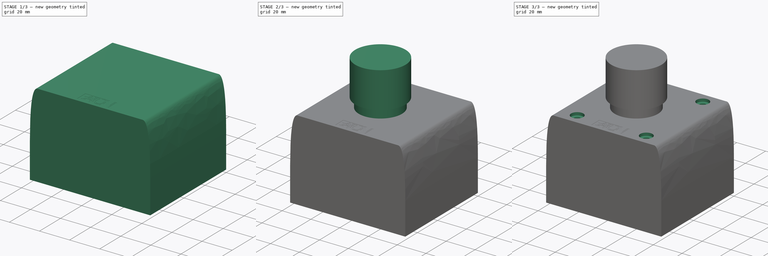
[diagram: build sequence overview — one tinted view per stage of 3, left to right]
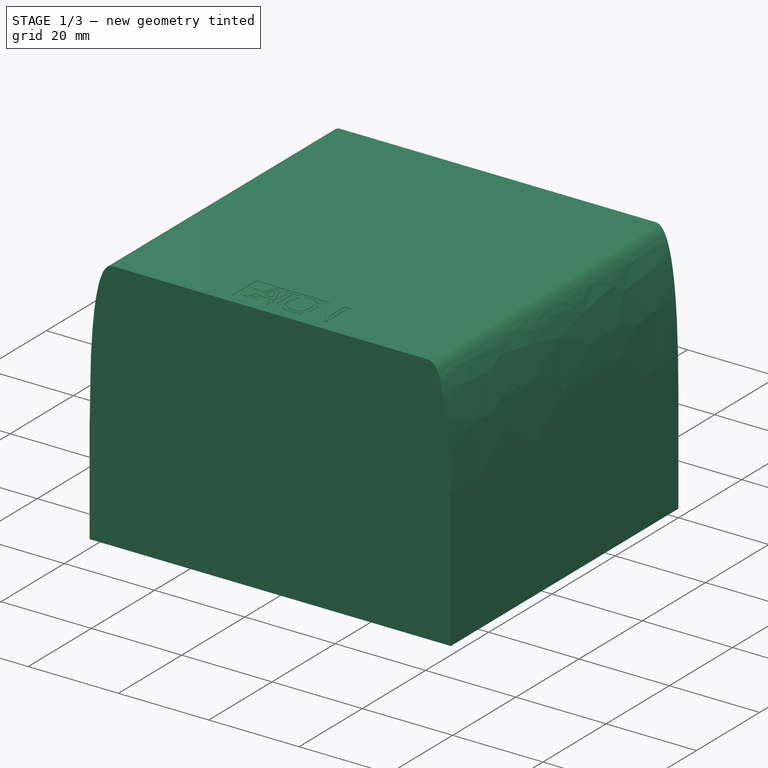
[diagram: stage 1 of 3 — iso view after this stage's code; geometry added in this stage tinted green]
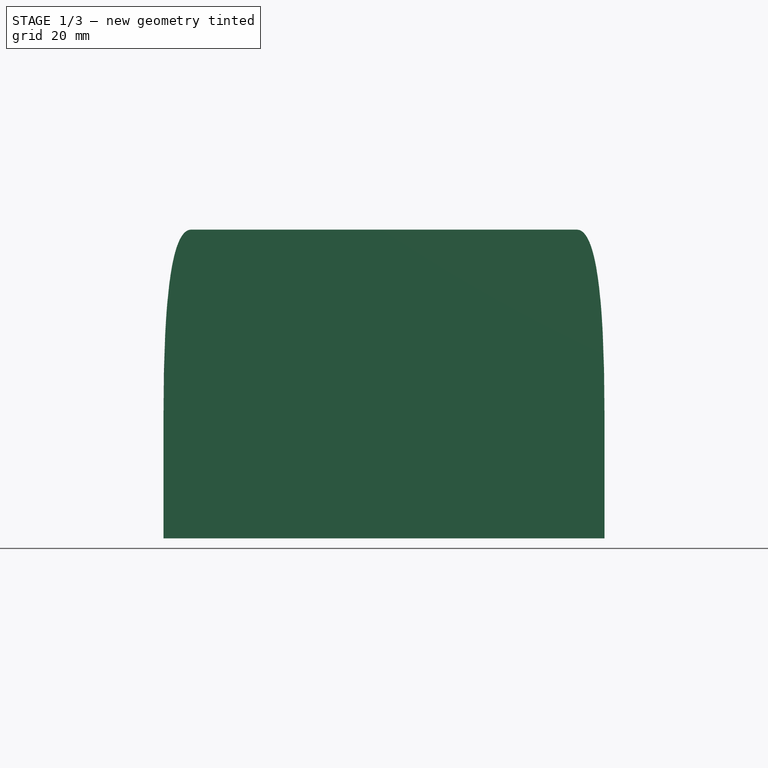
[diagram: stage 1 of 3 — front view after this stage's code; geometry added in this stage tinted green]
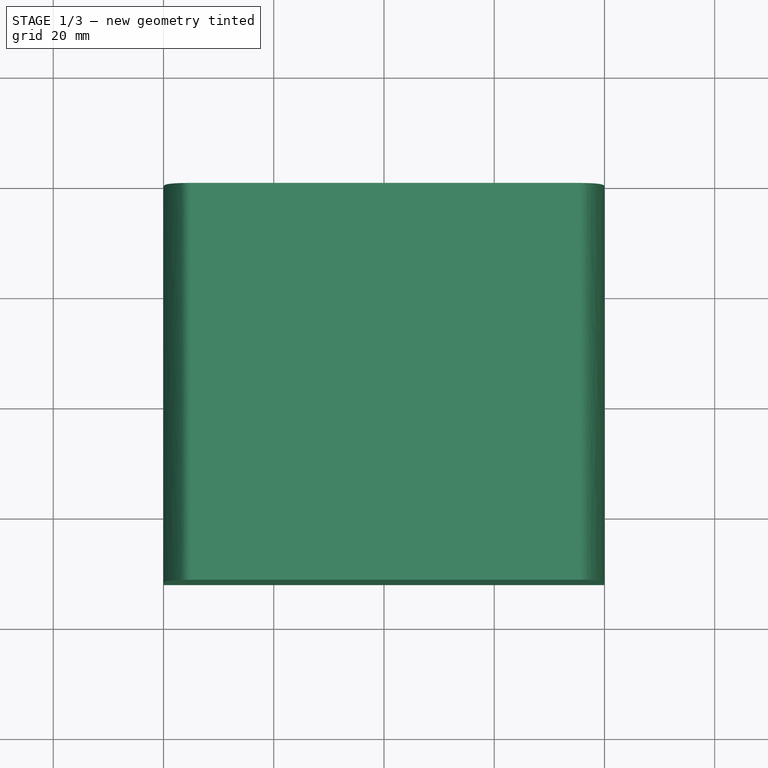
[diagram: stage 1 of 3 — top view after this stage's code; geometry added in this stage tinted green]
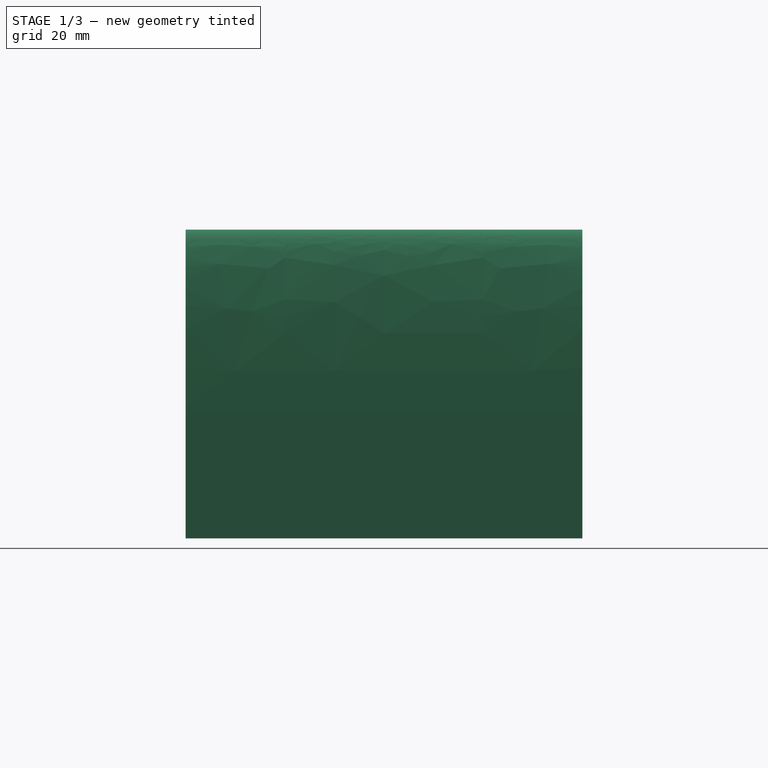
[diagram: stage 1 of 3 — right view after this stage's code; geometry added in this stage tinted green]
FCSTD DOCUMENT  (FreeCAD 1.0R39285 (Git))
Label: EATON-Notaus
License: All rights reserved
LicenseURL: https://en.wikipedia.org/wiki/All_rights_reserved
objects: Sketcher::SketchObject×6, PartDesign::Pad×3, PartDesign::Pocket×3, PartDesign::Body×1
note: 31 computed .brp shape members not serialized (recipe doc carries the construction recipe); baked Part::Feature solids carry a one-line shape summary decoded from their .brp

FEATURE [Sketcher::SketchObject] Sketch
  ArcFitTolerance = 1e-06
  AttachmentSupport = -> [XZ_Plane]
  FullyConstrained = true
  MakeInternals = false
  MapMode = 5
  Placement = pos=(0,0,0) rot=(1,0,0;1.5708rad)
  sketch-geometry (20):
    g0: Circle [constr] CenterX=0 CenterY=22.5 CenterZ=0 NormalX=0 NormalY=0 NormalZ=1 AngleXU=0 Radius=1
    g1: Circle [constr] CenterX=0 CenterY=56 CenterZ=0 NormalX=0 NormalY=0 NormalZ=1 AngleXU=0 Radius=1
    g2: Circle [constr] CenterX=5 CenterY=56 CenterZ=0 NormalX=0 NormalY=0 NormalZ=1 AngleXU=0 Radius=1
    g3: BSplineCurve PolesCount=3 KnotsCount=2 Degree=2 IsPeriodic=0
    g4: GeomPoint [constr] X=0 Y=22.5 Z=0
    g5: GeomPoint [constr] X=5 Y=56 Z=0
    g6: Circle [constr] CenterX=75 CenterY=56 CenterZ=0 NormalX=0 NormalY=0 NormalZ=1 AngleXU=0 Radius=1
    g7: Circle [constr] CenterX=80 CenterY=56 CenterZ=0 NormalX=0 NormalY=0 NormalZ=1 AngleXU=0 Radius=1
    g8: Circle [constr] CenterX=80 CenterY=22.5 CenterZ=0 NormalX=0 NormalY=0 NormalZ=1 AngleXU=0 Radius=1
    g9: BSplineCurve PolesCount=3 KnotsCount=2 Degree=2 IsPeriodic=0
    g10: GeomPoint [constr] X=75 Y=56 Z=0
    g11: GeomPoint [constr] X=80 Y=22.5 Z=0
    g12: LineSegment [constr] StartX=80 StartY=22.5 StartZ=0 EndX=80 EndY=56 EndZ=0
    g13: LineSegment [constr] StartX=75 StartY=56 StartZ=0 EndX=80 EndY=56 EndZ=0
    g14: LineSegment [constr] StartX=0 StartY=56 StartZ=0 EndX=5 EndY=56 EndZ=0
    g15: LineSegment [constr] StartX=0 StartY=22.5 StartZ=0 EndX=0 EndY=56 EndZ=0
    g16: LineSegment StartX=5 StartY=56 StartZ=0 EndX=75 EndY=56 EndZ=0
    g17: LineSegment StartX=0 StartY=22.5 StartZ=0 EndX=0 EndY=0 EndZ=0
    g18: LineSegment StartX=0 StartY=0 StartZ=0 EndX=80 EndY=0 EndZ=0
    g19: LineSegment StartX=80 StartY=22.5 StartZ=0 EndX=80 EndY=0 EndZ=0
  constraints (45):
    c: Weight(g0) = 1
    c: Equal(g0,g1)
    c: Equal(g0,g2)
    c: InternalAlignment(g0,g3)
    c: InternalAlignment(g1,g3)
    c: InternalAlignment(g2,g3)
    c: InternalAlignment(g4,g3)
    c: InternalAlignment(g5,g3)
    c: Weight(g6) = 1
    c: Equal(g6,g7)
    c: Equal(g6,g8)
    c: InternalAlignment(g6,g9)
    c: InternalAlignment(g7,g9)
    c: InternalAlignment(g8,g9)
    c: InternalAlignment(g10,g9)
    c: InternalAlignment(g11,g9)
    c: Coincident(g12,g9)
    c: Coincident(g12,g7)
    c: Vertical(g12)
    c: Coincident(g13,g9)
    c: Coincident(g13,g7)
    c: Horizontal(g13)
    c: Coincident(g14,g1)
    c: Coincident(g14,g3)
    c: Coincident(g15,g3)
    c: Coincident(g15,g1)
    c: Vertical(g15)
    c: Horizontal(g14)
    c: Equal(g13,g14)
    c: Equal(g12,g15)
    c: DistanceX(g14,g14) = 5
    c: DistanceY(g15,g15) = 33.5
    c: Coincident(g16,g3)
    c: Coincident(g16,g9)
    c: Horizontal(g16)
    c: Coincident(g17,g3)
    c: Vertical(g17)
    c: Coincident(g18,g17)
    c: Horizontal(g18)
    c: Coincident(g19,g9)
    c: Coincident(g19,g18)
    c: Vertical(g19)
    c: DistanceX(g18,g18) = 80
    c: Coincident(g17,g-1)
    c: DistanceY(g18,g7) = 56
FEATURE [PartDesign::Pad] Pad
  Direction = (0,-1,2e-16)
  Length = 72
  Length2 = 10
  Placement = pos=(0,0,0) rot=(1,0,0;1.5708rad)
  Profile = -> Sketch
  ReferenceAxis = -> Sketch [N_Axis]
  Refine = true
  Suppressed = false
  Type = 0
FEATURE [Sketcher::SketchObject] Sketch001
  ArcFitTolerance = 1e-06
  FullyConstrained = false
  MakeInternals = false
  Placement = pos=(30,-62,56) rot=(0,0,1;0rad)
  sketch-geometry (187):
    g0: BSplineCurve PolesCount=4 KnotsCount=2 Degree=3 IsPeriodic=0
    g1: BSplineCurve PolesCount=2 KnotsCount=2 Degree=1 IsPeriodic=0
    g2: BSplineCurve PolesCount=4 KnotsCount=2 Degree=3 IsPeriodic=0
    g3: BSplineCurve PolesCount=2 KnotsCount=2 Degree=1 IsPeriodic=0
    g4: BSplineCurve PolesCount=2 KnotsCount=2 Degree=1 IsPeriodic=0
    g5: BSplineCurve PolesCount=2 KnotsCount=2 Degree=1 IsPeriodic=0
    g6: BSplineCurve PolesCount=2 KnotsCount=2 Degree=1 IsPeriodic=0
    g7: BSplineCurve PolesCount=4 KnotsCount=2 Degree=3 IsPeriodic=0
    g8: BSplineCurve PolesCount=4 KnotsCount=2 Degree=3 IsPeriodic=0
    g9: BSplineCurve PolesCount=2 KnotsCount=2 Degree=1 IsPeriodic=0
    g10: BSplineCurve PolesCount=4 KnotsCount=2 Degree=3 IsPeriodic=0
    g11: BSplineCurve PolesCount=4 KnotsCount=2 Degree=3 IsPeriodic=0
    g12: BSplineCurve PolesCount=2 KnotsCount=2 Degree=1 IsPeriodic=0
    g13: BSplineCurve PolesCount=4 KnotsCount=2 Degree=3 IsPeriodic=0
    g14: BSplineCurve PolesCount=2 KnotsCount=2 Degree=1 IsPeriodic=0
    g15: BSplineCurve PolesCount=2 KnotsCount=2 Degree=1 IsPeriodic=0
    g16: BSplineCurve PolesCount=2 KnotsCount=2 Degree=1 IsPeriodic=0
    g17: BSplineCurve PolesCount=2 KnotsCount=2 Degree=1 IsPeriodic=0
    g18: BSplineCurve PolesCount=2 KnotsCount=2 Degree=1 IsPeriodic=0
    g19: BSplineCurve PolesCount=4 KnotsCount=2 Degree=3 IsPeriodic=0
    g20: BSplineCurve PolesCount=2 KnotsCount=2 Degree=1 IsPeriodic=0
    g21: BSplineCurve PolesCount=4 KnotsCount=2 Degree=3 IsPeriodic=0
    g22: BSplineCurve PolesCount=4 KnotsCount=2 Degree=3 IsPeriodic=0
    g23: BSplineCurve PolesCount=4 KnotsCount=2 Degree=3 IsPeriodic=0
    g24: BSplineCurve PolesCount=4 KnotsCount=2 Degree=3 IsPeriodic=0
    g25: BSplineCurve PolesCount=2 KnotsCount=2 Degree=1 IsPeriodic=0
    g26: BSplineCurve PolesCount=2 KnotsCount=2 Degree=1 IsPeriodic=0
    g27: BSplineCurve PolesCount=4 KnotsCount=2 Degree=3 IsPeriodic=0
    g28: BSplineCurve PolesCount=4 KnotsCount=2 Degree=3 IsPeriodic=0
    g29: BSplineCurve PolesCount=4 KnotsCount=2 Degree=3 IsPeriodic=0
    g30: BSplineCurve PolesCount=2 KnotsCount=2 Degree=1 IsPeriodic=0
    g31: BSplineCurve PolesCount=4 KnotsCount=2 Degree=3 IsPeriodic=0
    g32: BSplineCurve PolesCount=2 KnotsCount=2 Degree=1 IsPeriodic=0
    g33: BSplineCurve PolesCount=2 KnotsCount=2 Degree=1 IsPeriodic=0
    g34: BSplineCurve PolesCount=4 KnotsCount=2 Degree=3 IsPeriodic=0
    g35: BSplineCurve PolesCount=4 KnotsCount=2 Degree=3 IsPeriodic=0
    g36: BSplineCurve PolesCount=4 KnotsCount=2 Degree=3 IsPeriodic=0
    g37: BSplineCurve PolesCount=4 KnotsCount=2 Degree=3 IsPeriodic=0
    g38: BSplineCurve PolesCount=4 KnotsCount=2 Degree=3 IsPeriodic=0
    g39: BSplineCurve PolesCount=4 KnotsCount=2 Degree=3 IsPeriodic=0
    g40: BSplineCurve PolesCount=4 KnotsCount=2 Degree=3 IsPeriodic=0
    g41: BSplineCurve PolesCount=4 KnotsCount=2 Degree=3 IsPeriodic=0
    g42: BSplineCurve PolesCount=2 KnotsCount=2 Degree=1 IsPeriodic=0
    g43: BSplineCurve PolesCount=2 KnotsCount=2 Degree=1 IsPeriodic=0
    g44: BSplineCurve PolesCount=2 KnotsCount=2 Degree=1 IsPeriodic=0
    g45: BSplineCurve PolesCount=2 KnotsCount=2 Degree=1 IsPeriodic=0
    g46: BSplineCurve PolesCount=2 KnotsCount=2 Degree=1 IsPeriodic=0
    g47: BSplineCurve PolesCount=2 KnotsCount=2 Degree=1 IsPeriodic=0
    g48: BSplineCurve PolesCount=2 KnotsCount=2 Degree=1 IsPeriodic=0
    g49: BSplineCurve PolesCount=2 KnotsCount=2 Degree=1 IsPeriodic=0
    g50: BSplineCurve PolesCount=2 KnotsCount=2 Degree=1 IsPeriodic=0
    g51: BSplineCurve PolesCount=2 KnotsCount=2 Degree=1 IsPeriodic=0
    g52: BSplineCurve PolesCount=2 KnotsCount=2 Degree=1 IsPeriodic=0
    g53: BSplineCurve PolesCount=2 KnotsCount=2 Degree=1 IsPeriodic=0
    g54: BSplineCurve PolesCount=2 KnotsCount=2 Degree=1 IsPeriodic=0
    g55: BSplineCurve PolesCount=2 KnotsCount=2 Degree=1 IsPeriodic=0
    g56: BSplineCurve PolesCount=2 KnotsCount=2 Degree=1 IsPeriodic=0
    g57: BSplineCurve PolesCount=2 KnotsCount=2 Degree=1 IsPeriodic=0
    g58: BSplineCurve PolesCount=4 KnotsCount=2 Degree=3 IsPeriodic=0
    g59: BSplineCurve PolesCount=4 KnotsCount=2 Degree=3 IsPeriodic=0
    g60: BSplineCurve PolesCount=2 KnotsCount=2 Degree=1 IsPeriodic=0
    g61: BSplineCurve PolesCount=4 KnotsCount=2 Degree=3 IsPeriodic=0
    g62: BSplineCurve PolesCount=4 KnotsCount=2 Degree=3 IsPeriodic=0
    g63: BSplineCurve PolesCount=2 KnotsCount=2 Degree=1 IsPeriodic=0
    g64: BSplineCurve PolesCount=2 KnotsCount=2 Degree=1 IsPeriodic=0
    g65: BSplineCurve PolesCount=2 KnotsCount=2 Degree=1 IsPeriodic=0
    g66: BSplineCurve PolesCount=2 KnotsCount=2 Degree=1 IsPeriodic=0
    g67: BSplineCurve PolesCount=4 KnotsCount=2 Degree=3 IsPeriodic=0
    g68: BSplineCurve PolesCount=2 KnotsCount=2 Degree=1 IsPeriodic=0
    g69: BSplineCurve PolesCount=2 KnotsCount=2 Degree=1 IsPeriodic=0
    g70: BSplineCurve PolesCount=4 KnotsCount=2 Degree=3 IsPeriodic=0
    g71: BSplineCurve PolesCount=4 KnotsCount=2 Degree=3 IsPeriodic=0
    g72: BSplineCurve PolesCount=4 KnotsCount=2 Degree=3 IsPeriodic=0
    g73: BSplineCurve PolesCount=2 KnotsCount=2 Degree=1 IsPeriodic=0
    g74: BSplineCurve PolesCount=2 KnotsCount=2 Degree=1 IsPeriodic=0
    g75: BSplineCurve PolesCount=4 KnotsCount=2 Degree=3 IsPeriodic=0
    g76: BSplineCurve PolesCount=4 KnotsCount=2 Degree=3 IsPeriodic=0
    g77: BSplineCurve PolesCount=2 KnotsCount=2 Degree=1 IsPeriodic=0
    g78: BSplineCurve PolesCount=4 KnotsCount=2 Degree=3 IsPeriodic=0
    g79: BSplineCurve PolesCount=4 KnotsCount=2 Degree=3 IsPeriodic=0
    g80: BSplineCurve PolesCount=4 KnotsCount=2 Degree=3 IsPeriodic=0
    g81: BSplineCurve PolesCount=2 KnotsCount=2 Degree=1 IsPeriodic=0
    g82: BSplineCurve PolesCount=2 KnotsCount=2 Degree=1 IsPeriodic=0
    g83: BSplineCurve PolesCount=4 KnotsCount=2 Degree=3 IsPeriodic=0
    g84: BSplineCurve PolesCount=2 KnotsCount=2 Degree=1 IsPeriodic=0
    g85: BSplineCurve PolesCount=2 KnotsCount=2 Degree=1 IsPeriodic=0
    g86: BSplineCurve PolesCount=4 KnotsCount=2 Degree=3 IsPeriodic=0
    g87: BSplineCurve PolesCount=2 KnotsCount=2 Degree=1 IsPeriodic=0
    g88: BSplineCurve PolesCount=2 KnotsCount=2 Degree=1 IsPeriodic=0
    g89: BSplineCurve PolesCount=2 KnotsCount=2 Degree=1 IsPeriodic=0
    g90: BSplineCurve PolesCount=2 KnotsCount=2 Degree=1 IsPeriodic=0
    g91: BSplineCurve PolesCount=4 KnotsCount=2 Degree=3 IsPeriodic=0
    g92: BSplineCurve PolesCount=2 KnotsCount=2 Degree=1 IsPeriodic=0
    g93: BSplineCurve PolesCount=4 KnotsCount=2 Degree=3 IsPeriodic=0
    g94: BSplineCurve PolesCount=2 KnotsCount=2 Degree=1 IsPeriodic=0
    g95: BSplineCurve PolesCount=2 KnotsCount=2 Degree=1 IsPeriodic=0
    g96: BSplineCurve PolesCount=2 KnotsCount=2 Degree=1 IsPeriodic=0
    g97: BSplineCurve PolesCount=2 KnotsCount=2 Degree=1 IsPeriodic=0
    g98: BSplineCurve PolesCount=2 KnotsCount=2 Degree=1 IsPeriodic=0
    g99: BSplineCurve PolesCount=2 KnotsCount=2 Degree=1 IsPeriodic=0
    g100: BSplineCurve PolesCount=2 KnotsCount=2 Degree=1 IsPeriodic=0
    g101: BSplineCurve PolesCount=4 KnotsCount=2 Degree=3 IsPeriodic=0
    g102: BSplineCurve PolesCount=2 KnotsCount=2 Degree=1 IsPeriodic=0
    g103: BSplineCurve PolesCount=2 KnotsCount=2 Degree=1 IsPeriodic=0
    g104: BSplineCurve PolesCount=4 KnotsCount=2 Degree=3 IsPeriodic=0
    g105: BSplineCurve PolesCount=2 KnotsCount=2 Degree=1 IsPeriodic=0
    g106: BSplineCurve PolesCount=2 KnotsCount=2 Degree=1 IsPeriodic=0
    g107: BSplineCurve PolesCount=2 KnotsCount=2 Degree=1 IsPeriodic=0
    g108: BSplineCurve PolesCount=2 KnotsCount=2 Degree=1 IsPeriodic=0
    g109: BSplineCurve PolesCount=2 KnotsCount=2 Degree=1 IsPeriodic=0
    g110: BSplineCurve PolesCount=2 KnotsCount=2 Degree=1 IsPeriodic=0
    g111: BSplineCurve PolesCount=2 KnotsCount=2 Degree=1 IsPeriodic=0
    g112: BSplineCurve PolesCount=2 KnotsCount=2 Degree=1 IsPeriodic=0
    g113: BSplineCurve PolesCount=4 KnotsCount=2 Degree=3 IsPeriodic=0
    g114: BSplineCurve PolesCount=2 KnotsCount=2 Degree=1 IsPeriodic=0
    g115: BSplineCurve PolesCount=2 KnotsCount=2 Degree=1 IsPeriodic=0
    g116: BSplineCurve PolesCount=4 KnotsCount=2 Degree=3 IsPeriodic=0
    g117: BSplineCurve PolesCount=2 KnotsCount=2 Degree=1 IsPeriodic=0
    g118: BSplineCurve PolesCount=2 KnotsCount=2 Degree=1 IsPeriodic=0
    g119: BSplineCurve PolesCount=4 KnotsCount=2 Degree=3 IsPeriodic=0
    g120: BSplineCurve PolesCount=2 KnotsCount=2 Degree=1 IsPeriodic=0
    g121: BSplineCurve PolesCount=2 KnotsCount=2 Degree=1 IsPeriodic=0
    g122: BSplineCurve PolesCount=2 KnotsCount=2 Degree=1 IsPeriodic=0
    g123: BSplineCurve PolesCount=4 KnotsCount=2 Degree=3 IsPeriodic=0
    g124: BSplineCurve PolesCount=2 KnotsCount=2 Degree=1 IsPeriodic=0
    g125: BSplineCurve PolesCount=2 KnotsCount=2 Degree=1 IsPeriodic=0
    g126: BSplineCurve PolesCount=4 KnotsCount=2 Degree=3 IsPeriodic=0
    g127: BSplineCurve PolesCount=2 KnotsCount=2 Degree=1 IsPeriodic=0
    g128: BSplineCurve PolesCount=4 KnotsCount=2 Degree=3 IsPeriodic=0
    g129: BSplineCurve PolesCount=4 KnotsCount=2 Degree=3 IsPeriodic=0
    g130: BSplineCurve PolesCount=4 KnotsCount=2 Degree=3 IsPeriodic=0
    g131: BSplineCurve PolesCount=2 KnotsCount=2 Degree=1 IsPeriodic=0
    g132: BSplineCurve PolesCount=4 KnotsCount=2 Degree=3 IsPeriodic=0
    g133: BSplineCurve PolesCount=4 KnotsCount=2 Degree=3 IsPeriodic=0
    g134: BSplineCurve PolesCount=2 KnotsCount=2 Degree=1 IsPeriodic=0
    g135: BSplineCurve PolesCount=2 KnotsCount=2 Degree=1 IsPeriodic=0
    g136: BSplineCurve PolesCount=2 KnotsCount=2 Degree=1 IsPeriodic=0
    g137: BSplineCurve PolesCount=2 KnotsCount=2 Degree=1 IsPeriodic=0
    g138: BSplineCurve PolesCount=2 KnotsCount=2 Degree=1 IsPeriodic=0
    g139: BSplineCurve PolesCount=2 KnotsCount=2 Degree=1 IsPeriodic=0
    g140: BSplineCurve PolesCount=2 KnotsCount=2 Degree=1 IsPeriodic=0
    g141: BSplineCurve PolesCount=2 KnotsCount=2 Degree=1 IsPeriodic=0
    g142: BSplineCurve PolesCount=2 KnotsCount=2 Degree=1 IsPeriodic=0
    g143: BSplineCurve PolesCount=2 KnotsCount=2 Degree=1 IsPeriodic=0
    g144: BSplineCurve PolesCount=2 KnotsCount=2 Degree=1 IsPeriodic=0
    g145: BSplineCurve PolesCount=2 KnotsCount=2 Degree=1 IsPeriodic=0
    g146: BSplineCurve PolesCount=2 KnotsCount=2 Degree=1 IsPeriodic=0
    g147: BSplineCurve PolesCount=2 KnotsCount=2 Degree=1 IsPeriodic=0
    g148: BSplineCurve PolesCount=2 KnotsCount=2 Degree=1 IsPeriodic=0
    g149: BSplineCurve PolesCount=2 KnotsCount=2 Degree=1 IsPeriodic=0
    g150: BSplineCurve PolesCount=2 KnotsCount=2 Degree=1 IsPeriodic=0
    g151: BSplineCurve PolesCount=2 KnotsCount=2 Degree=1 IsPeriodic=0
    g152: BSplineCurve PolesCount=2 KnotsCount=2 Degree=1 IsPeriodic=0
    g153: BSplineCurve PolesCount=2 KnotsCount=2 Degree=1 IsPeriodic=0
    g154: BSplineCurve PolesCount=2 KnotsCount=2 Degree=1 IsPeriodic=0
    g155: BSplineCurve PolesCount=4 KnotsCount=2 Degree=3 IsPeriodic=0
    g156: BSplineCurve PolesCount=2 KnotsCount=2 Degree=1 IsPeriodic=0
    g157: BSplineCurve PolesCount=2 KnotsCount=2 Degree=1 IsPeriodic=0
    g158: BSplineCurve PolesCount=4 KnotsCount=2 Degree=3 IsPeriodic=0
    g159: BSplineCurve PolesCount=2 KnotsCount=2 Degree=1 IsPeriodic=0
    g160: BSplineCurve PolesCount=2 KnotsCount=2 Degree=1 IsPeriodic=0
    g161: BSplineCurve PolesCount=4 KnotsCount=2 Degree=3 IsPeriodic=0
    g162: BSplineCurve PolesCount=4 KnotsCount=2 Degree=3 IsPeriodic=0
    g163: BSplineCurve PolesCount=4 KnotsCount=2 Degree=3 IsPeriodic=0
    g164: BSplineCurve PolesCount=2 KnotsCount=2 Degree=1 IsPeriodic=0
    g165: BSplineCurve PolesCount=2 KnotsCount=2 Degree=1 IsPeriodic=0
    g166: BSplineCurve PolesCount=2 KnotsCount=2 Degree=1 IsPeriodic=0
    g167: BSplineCurve PolesCount=4 KnotsCount=2 Degree=3 IsPeriodic=0
    g168: BSplineCurve PolesCount=4 KnotsCount=2 Degree=3 IsPeriodic=0
    g169: BSplineCurve PolesCount=4 KnotsCount=2 Degree=3 IsPeriodic=0
    g170: BSplineCurve PolesCount=2 KnotsCount=2 Degree=1 IsPeriodic=0
    g171: BSplineCurve PolesCount=4 KnotsCount=2 Degree=3 IsPeriodic=0
    g172: BSplineCurve PolesCount=2 KnotsCount=2 Degree=1 IsPeriodic=0
    g173: BSplineCurve PolesCount=2 KnotsCount=2 Degree=1 IsPeriodic=0
    g174: BSplineCurve PolesCount=2 KnotsCount=2 Degree=1 IsPeriodic=0
    g175: BSplineCurve PolesCount=2 KnotsCount=2 Degree=1 IsPeriodic=0
    g176: BSplineCurve PolesCount=2 KnotsCount=2 Degree=1 IsPeriodic=0
    g177: BSplineCurve PolesCount=4 KnotsCount=2 Degree=3 IsPeriodic=0
    g178: BSplineCurve PolesCount=2 KnotsCount=2 Degree=1 IsPeriodic=0
    g179: BSplineCurve PolesCount=2 KnotsCount=2 Degree=1 IsPeriodic=0
    g180: BSplineCurve PolesCount=4 KnotsCount=2 Degree=3 IsPeriodic=0
    g181: BSplineCurve PolesCount=2 KnotsCount=2 Degree=1 IsPeriodic=0
    g182: BSplineCurve PolesCount=2 KnotsCount=2 Degree=1 IsPeriodic=0
    g183: BSplineCurve PolesCount=2 KnotsCount=2 Degree=1 IsPeriodic=0
    g184: BSplineCurve PolesCount=4 KnotsCount=2 Degree=3 IsPeriodic=0
    g185: BSplineCurve PolesCount=2 KnotsCount=2 Degree=1 IsPeriodic=0
    g186: BSplineCurve PolesCount=4 KnotsCount=2 Degree=3 IsPeriodic=0
  constraints (187):
    c: Coincident(g0,g1)
    c: Coincident(g1,g2)
    c: Coincident(g2,g0)
    c: Coincident(g3,g4)
    c: Coincident(g4,g5)
    c: Coincident(g5,g6)
    c: Coincident(g6,g3)
    c: Coincident(g7,g8)
    c: Coincident(g8,g9)
    c: Coincident(g9,g10)
    c: Coincident(g10,g11)
    c: Coincident(g11,g12)
    c: Coincident(g12,g7)
    c: Coincident(g13,g14)
    c: Coincident(g14,g15)
    c: Coincident(g15,g16)
    c: Coincident(g16,g17)
    c: Coincident(g17,g18)
    c: Coincident(g18,g19)
    c: Coincident(g19,g13)
    c: Coincident(g20,g21)
    c: Coincident(g21,g22)
    c: Coincident(g22,g23)
    c: Coincident(g23,g24)
    c: Coincident(g24,g25)
    c: Coincident(g25,g26)
    c: Coincident(g26,g27)
    c: Coincident(g27,g28)
    c: Coincident(g28,g29)
    c: Coincident(g29,g30)
    c: Coincident(g30,g31)
    c: Coincident(g31,g32)
    c: Coincident(g32,g33)
    c: Coincident(g33,g34)
    c: Coincident(g34,g35)
    c: Coincident(g35,g36)
    c: Coincident(g36,g37)
    c: Coincident(g37,g38)
    c: Coincident(g38,g39)
    c: Coincident(g39,g40)
    c: Coincident(g40,g41)
    c: Coincident(g41,g20)
    c: Coincident(g42,g43)
    c: Coincident(g43,g44)
    c: Coincident(g44,g42)
    c: Coincident(g45,g46)
    c: Coincident(g46,g47)
    c: Coincident(g47,g48)
    c: Coincident(g48,g49)
    c: Coincident(g49,g50)
    c: Coincident(g50,g51)
    c: Coincident(g51,g52)
    c: Coincident(g52,g53)
    c: Coincident(g53,g54)
    c: Coincident(g54,g55)
    c: Coincident(g55,g56)
    c: Coincident(g56,g57)
    c: Coincident(g57,g58)
    c: Coincident(g58,g59)
    c: Coincident(g59,g60)
    c: Coincident(g60,g61)
    c: Coincident(g61,g62)
    c: Coincident(g62,g45)
    c: Coincident(g63,g64)
    c: Coincident(g64,g65)
    c: Coincident(g65,g66)
    c: Coincident(g66,g63)
    c: Coincident(g67,g68)
    c: Coincident(g68,g69)
    c: Coincident(g69,g70)
    c: Coincident(g70,g71)
    c: Coincident(g71,g72)
    c: Coincident(g72,g73)
    c: Coincident(g73,g74)
    c: Coincident(g74,g75)
    c: Coincident(g75,g76)
    c: Coincident(g76,g77)
    c: Coincident(g77,g78)
    c: Coincident(g78,g79)
    c: Coincident(g79,g80)
    c: Coincident(g80,g81)
    c: Coincident(g81,g82)
    c: Coincident(g82,g83)
    c: Coincident(g83,g84)
    c: Coincident(g84,g85)
    c: Coincident(g85,g86)
    c: Coincident(g86,g67)
    c: Coincident(g87,g88)
    c: Coincident(g88,g89)
    c: Coincident(g89,g90)
    c: Coincident(g90,g91)
    c: Coincident(g91,g92)
    c: Coincident(g92,g93)
    c: Coincident(g93,g94)
    c: Coincident(g94,g95)
    c: Coincident(g95,g96)
    c: Coincident(g96,g97)
    c: Coincident(g97,g98)
    c: Coincident(g98,g99)
    c: Coincident(g99,g100)
    c: Coincident(g100,g101)
    c: Coincident(g101,g102)
    c: Coincident(g102,g87)
    c: Coincident(g103,g104)
    c: Coincident(g104,g105)
    c: Coincident(g105,g106)
    c: Coincident(g106,g107)
    c: Coincident(g107,g108)
    c: Coincident(g108,g109)
    c: Coincident(g109,g110)
    c: Coincident(g110,g103)
    c: Coincident(g111,g112)
    c: Coincident(g112,g113)
    c: Coincident(g113,g114)
    c: Coincident(g114,g115)
    c: Coincident(g115,g116)
    c: Coincident(g116,g117)
    c: Coincident(g117,g118)
    c: Coincident(g118,g119)
    c: Coincident(g119,g120)
    c: Coincident(g120,g121)
    c: Coincident(g121,g122)
    c: Coincident(g122,g111)
    c: Coincident(g123,g124)
    c: Coincident(g124,g125)
    c: Coincident(g125,g126)
    c: Coincident(g126,g127)
    c: Coincident(g127,g128)
    c: Coincident(g128,g129)
    c: Coincident(g129,g130)
    c: Coincident(g130,g131)
    c: Coincident(g131,g132)
    c: Coincident(g132,g123)
    c: Coincident(g133,g134)
    c: Coincident(g134,g135)
    c: Coincident(g135,g136)
    c: Coincident(g136,g137)
    c: Coincident(g137,g138)
    c: Coincident(g138,g139)
    c: Coincident(g139,g140)
    c: Coincident(g140,g141)
    c: Coincident(g141,g142)
    c: Coincident(g142,g143)
    c: Coincident(g143,g144)
    c: Coincident(g144,g145)
    c: Coincident(g145,g146)
    c: Coincident(g146,g147)
    c: Coincident(g147,g148)
    c: Coincident(g148,g149)
    c: Coincident(g149,g150)
    c: Coincident(g150,g151)
    c: Coincident(g151,g152)
    c: Coincident(g152,g153)
    c: Coincident(g153,g154)
    c: Coincident(g154,g155)
    c: Coincident(g155,g156)
    c: Coincident(g156,g157)
    c: Coincident(g157,g158)
    c: Coincident(g158,g159)
    c: Coincident(g159,g160)
    c: Coincident(g160,g161)
    c: Coincident(g161,g162)
    c: Coincident(g162,g163)
    c: Coincident(g163,g164)
    c: Coincident(g164,g165)
    c: Coincident(g165,g166)
    c: Coincident(g166,g167)
    c: Coincident(g167,g168)
    c: Coincident(g168,g169)
    c: Coincident(g169,g170)
    c: Coincident(g170,g171)
    c: Coincident(g171,g172)
    c: Coincident(g172,g173)
    c: Coincident(g173,g174)
    c: Coincident(g174,g175)
    c: Coincident(g175,g176)
    c: Coincident(g176,g177)
    c: Coincident(g177,g178)
    c: Coincident(g178,g179)
    c: Coincident(g179,g180)
    c: Coincident(g180,g181)
    c: Coincident(g181,g182)
    c: Coincident(g182,g183)
    c: Coincident(g183,g184)
    c: Coincident(g184,g185)
    c: Coincident(g185,g186)
    c: Coincident(g186,g133)
FEATURE [PartDesign::Pocket] Pocket
  BaseFeature = -> Pad
  Direction = (0,0,-1)
  Length = 0.1
  Length2 = 5
  Placement = pos=(0,0,0) rot=(1,0,0;1.5708rad)
  Profile = -> Sketch001
  ReferenceAxis = -> Sketch001 [N_Axis]
  Refine = true
  Suppressed = false
  Type = 0
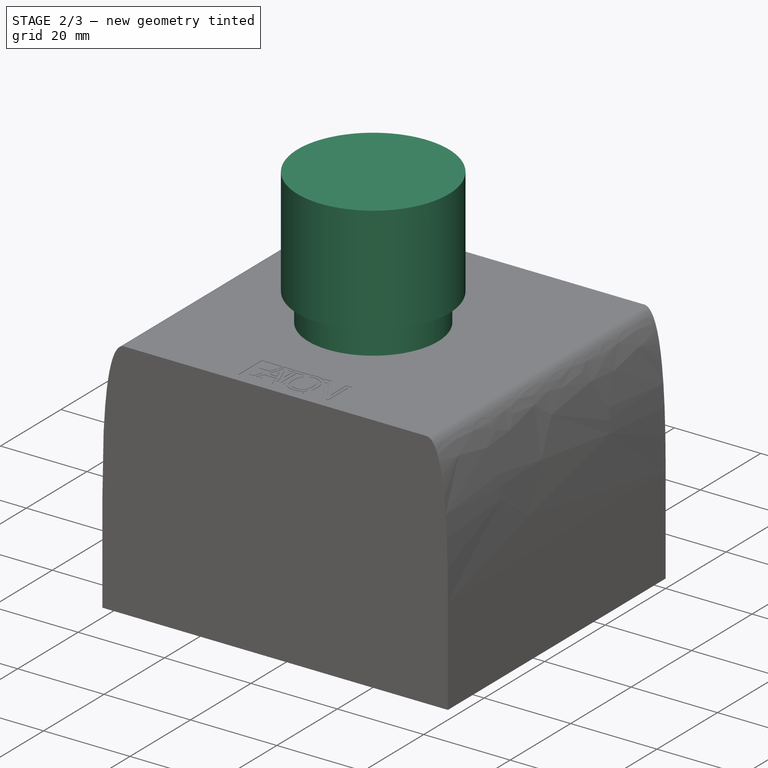
[diagram: stage 2 of 3 — iso view after this stage's code; geometry added in this stage tinted green]
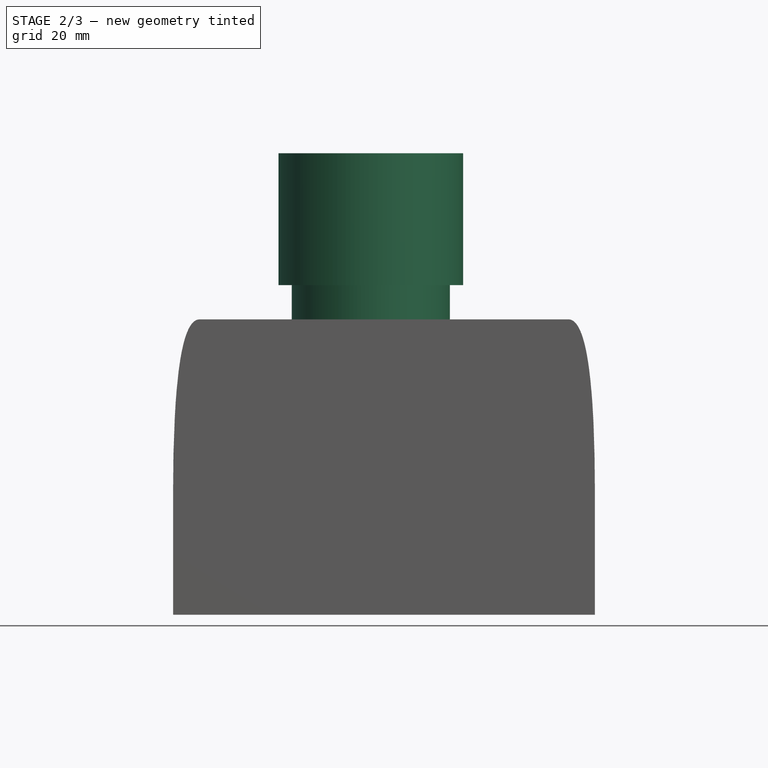
[diagram: stage 2 of 3 — front view after this stage's code; geometry added in this stage tinted green]
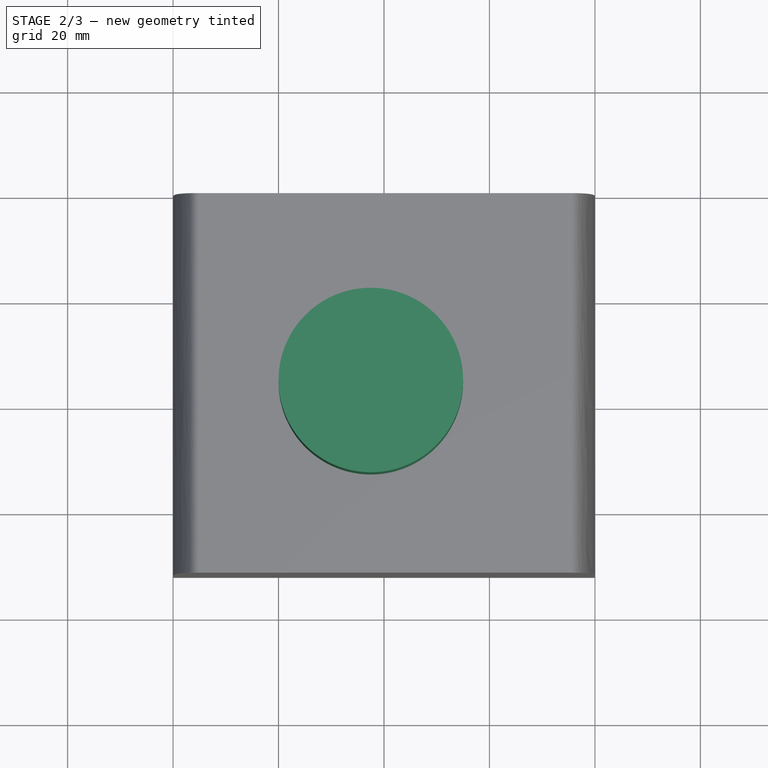
[diagram: stage 2 of 3 — top view after this stage's code; geometry added in this stage tinted green]
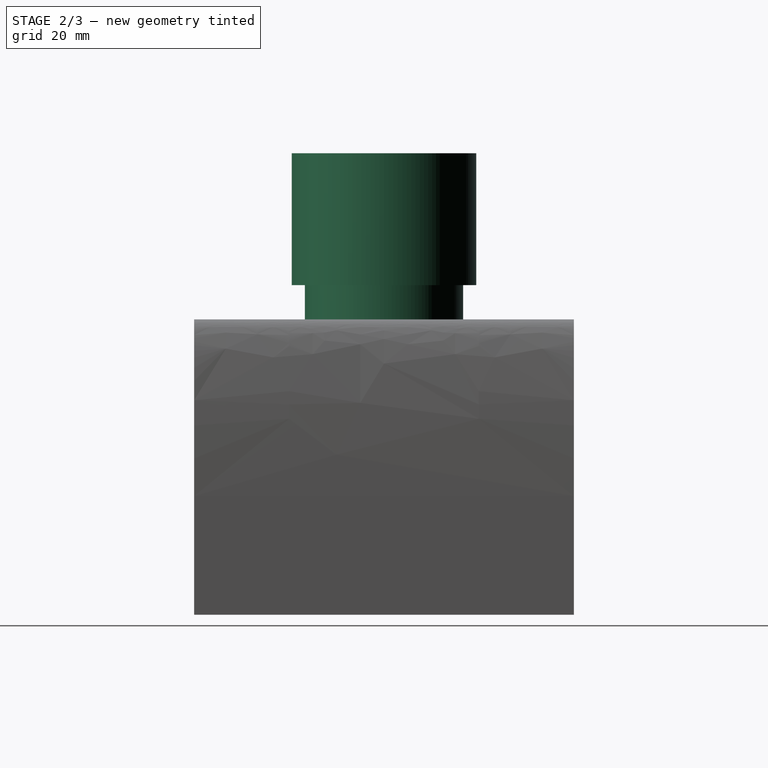
[diagram: stage 2 of 3 — right view after this stage's code; geometry added in this stage tinted green]
FEATURE [Sketcher::SketchObject] Sketch002
  ArcFitTolerance = 1e-06
  AttachmentSupport = -> [Pocket]
  FullyConstrained = true
  MakeInternals = false
  MapMode = 5
  Placement = pos=(0,2.46e-14,56) rot=(0,0,1;3.14159rad)
  sketch-geometry (3):
    g0: Circle CenterX=-37.5 CenterY=36 CenterZ=0 NormalX=0 NormalY=0 NormalZ=1 AngleXU=0 Radius=15
    g1: LineSegment [constr] StartX=-22.5 StartY=36 StartZ=0 EndX=0 EndY=36 EndZ=0
    g2: LineSegment [constr] StartX=-37.5 StartY=21 StartZ=0 EndX=-37.5 EndY=0 EndZ=0
  constraints (11):
    c: Diameter(g0) = 30
    c: PointOnObject(g1,g0)
    c: PointOnObject(g1,g-2)
    c: Horizontal(g1)
    c: PointOnObject(g2,g0)
    c: PointOnObject(g2,g-1)
    c: Vertical(g2)
    c: Vertical(g2,g0)
    c: Horizontal(g1,g0)
    c: DistanceY(g2,g2) = 21
    c: DistanceX(g1,g1) = 22.5
FEATURE [PartDesign::Pad] Pad001
  BaseFeature = -> Pocket
  Direction = (0,0,1)
  Length = 6.5
  Length2 = 10
  Placement = pos=(0,0,0) rot=(1,0,0;1.5708rad)
  Profile = -> Sketch002
  ReferenceAxis = -> Sketch002 [N_Axis]
  Refine = true
  Suppressed = false
  Type = 0
FEATURE [Sketcher::SketchObject] Sketch003
  ArcFitTolerance = 1e-06
  AttachmentSupport = -> [Pad001]
  ExternalGeometry = -> [Pad001]
  FullyConstrained = true
  MakeInternals = false
  MapMode = 5
  Placement = pos=(0,0,62.5) rot=(0,0,1;3.14159rad)
  sketch-geometry (1):
    g0: Circle CenterX=-37.5 CenterY=36 CenterZ=0 NormalX=0 NormalY=0 NormalZ=1 AngleXU=0 Radius=17.5
  constraints (2):
    c: Diameter(g0) = 35
    c: Coincident(g0,g-3)
FEATURE [PartDesign::Pad] Pad002
  BaseFeature = -> Pad001
  Direction = (0,0,1)
  Length = 25
  Length2 = 10
  Placement = pos=(0,0,0) rot=(1,0,0;1.5708rad)
  Profile = -> Sketch003
  ReferenceAxis = -> Sketch003 [N_Axis]
  Refine = true
  Suppressed = false
  Type = 0
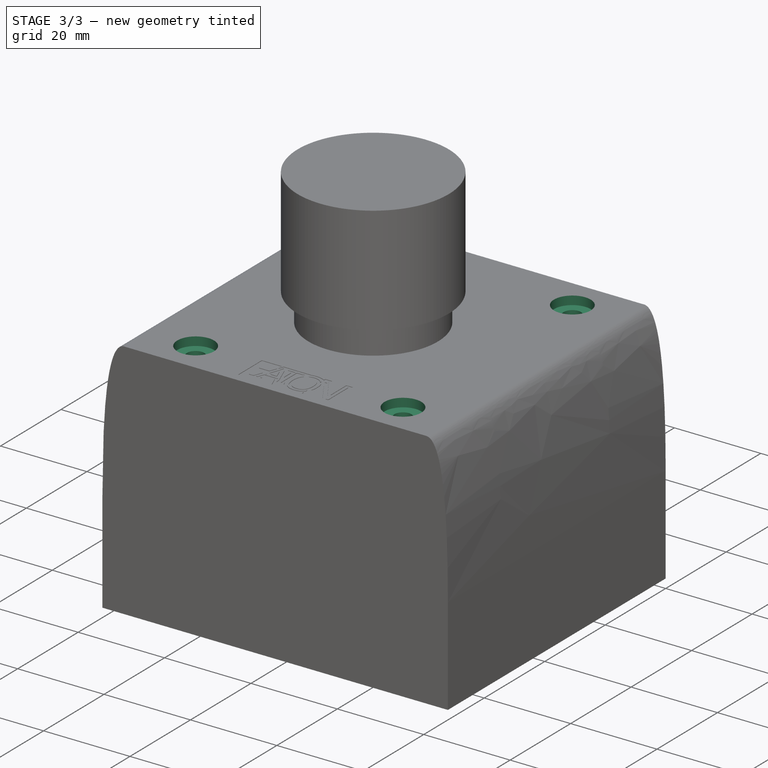
[diagram: stage 3 of 3 — iso view after this stage's code; geometry added in this stage tinted green]
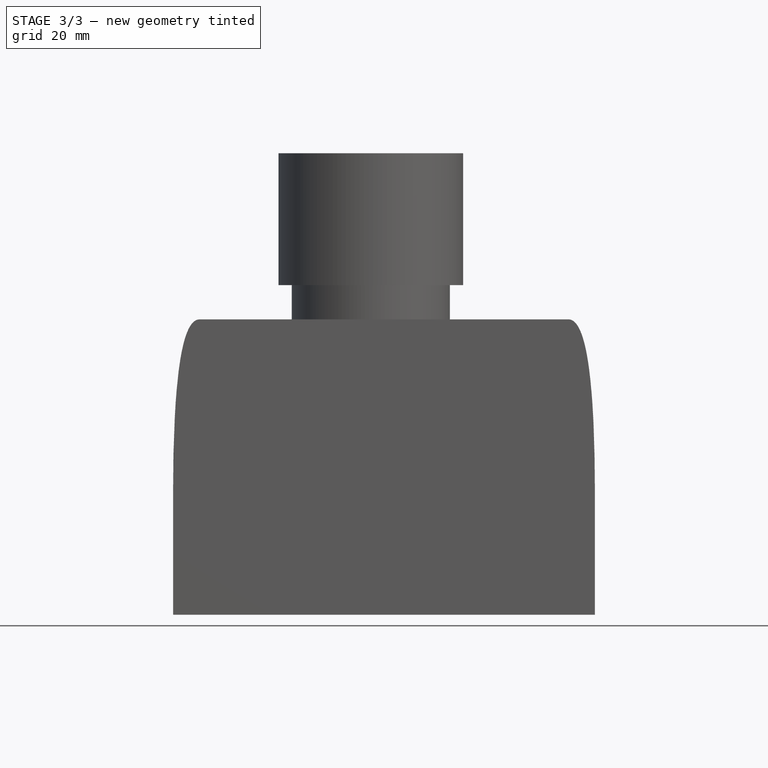
[diagram: stage 3 of 3 — front view after this stage's code; geometry added in this stage tinted green]
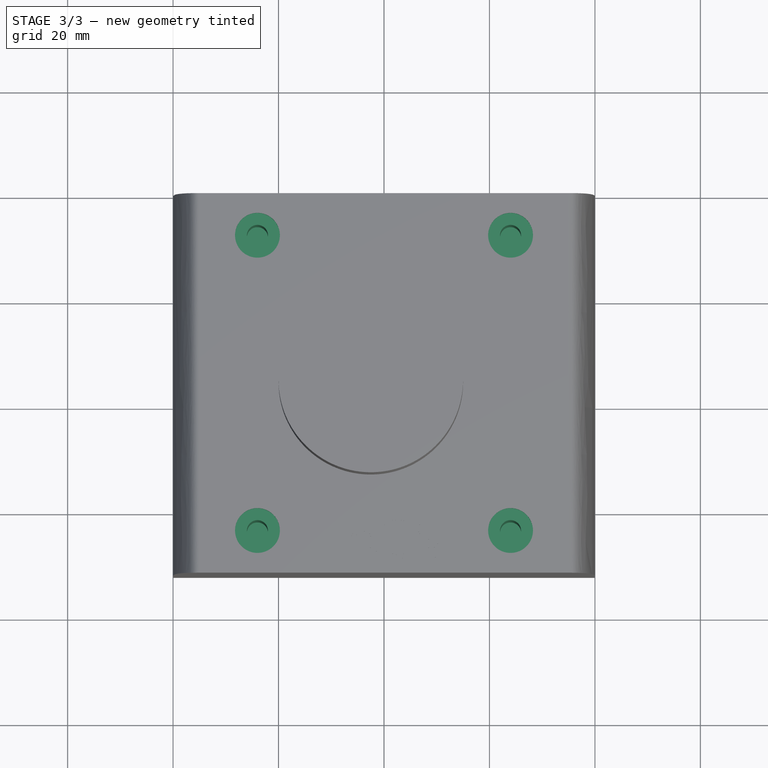
[diagram: stage 3 of 3 — top view after this stage's code; geometry added in this stage tinted green]
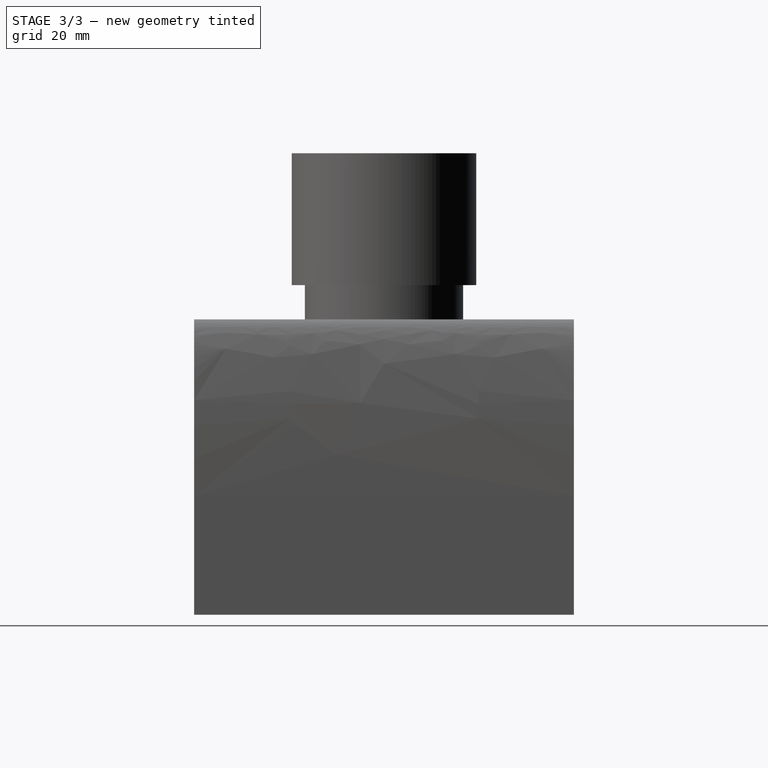
[diagram: stage 3 of 3 — right view after this stage's code; geometry added in this stage tinted green]
FEATURE [Sketcher::SketchObject] Sketch004
  ArcFitTolerance = 1e-06
  AttachmentSupport = -> [Pad002]
  ExternalGeometry = -> [Pad002]
  FullyConstrained = true
  MakeInternals = false
  MapMode = 5
  Placement = pos=(0,2.46e-14,56) rot=(0,0,1;3.14159rad)
  sketch-geometry (8):
    g0: Circle CenterX=-16 CenterY=64 CenterZ=0 NormalX=0 NormalY=0 NormalZ=1 AngleXU=0 Radius=4.25
    g1: LineSegment [constr] StartX=-16 StartY=64 StartZ=0 EndX=0 EndY=64 EndZ=0
    g2: LineSegment [constr] StartX=-16 StartY=64 StartZ=0 EndX=-16 EndY=72 EndZ=0
    g3: Circle CenterX=-64 CenterY=8 CenterZ=0 NormalX=0 NormalY=0 NormalZ=1 AngleXU=0 Radius=4.25
    g4: LineSegment [constr] StartX=-64 StartY=8 StartZ=0 EndX=-64 EndY=0 EndZ=0
    g5: LineSegment [constr] StartX=-64 StartY=8 StartZ=0 EndX=-80 EndY=8 EndZ=0
    g6: Circle CenterX=-64 CenterY=64 CenterZ=0 NormalX=0 NormalY=0 NormalZ=1 AngleXU=0 Radius=4.25
    g7: Circle CenterX=-16 CenterY=8 CenterZ=0 NormalX=0 NormalY=0 NormalZ=1 AngleXU=0 Radius=4.25
  constraints (24):
    c: Coincident(g1,g0)
    c: PointOnObject(g1,g-2)
    c: Horizontal(g1)
    c: Coincident(g2,g0)
    c: Vertical(g2)
    c: Horizontal(g2,g-3)
    c: Coincident(g4,g3)
    c: PointOnObject(g4,g-1)
    c: Vertical(g4)
    c: Coincident(g5,g3)
    c: Horizontal(g5)
    c: Vertical(g5,g-3)
    c: DistanceY(g2,g2) = 8
    c: DistanceX(g1,g1) = 16
    c: Equal(g1,g5)
    c: Equal(g4,g2)
    c: Diameter(g3) = 8.5
    c: Equal(g0,g3)
    c: Equal(g6,g0)
    c: Equal(g6,g7)
    c: Horizontal(g6,g0)
    c: Vertical(g6,g3)
    c: Vertical(g7,g0)
    c: Horizontal(g7,g3)
FEATURE [PartDesign::Pocket] Pocket001
  BaseFeature = -> Pad002
  Direction = (0,0,-1)
  Length = 2
  Length2 = 5
  Placement = pos=(0,0,0) rot=(1,0,0;1.5708rad)
  Profile = -> Sketch004
  ReferenceAxis = -> Sketch004 [N_Axis]
  Refine = true
  Suppressed = false
  Type = 0
FEATURE [Sketcher::SketchObject] Sketch005
  ArcFitTolerance = 1e-06
  AttachmentSupport = -> [Pocket001]
  ExternalGeometry = -> [Pocket001]
  FullyConstrained = true
  MakeInternals = false
  MapMode = 5
  Placement = pos=(0,0,54) rot=(0,0,1;3.14159rad)
  sketch-geometry (4):
    g0: Circle CenterX=-16 CenterY=8 CenterZ=0 NormalX=0 NormalY=0 NormalZ=1 AngleXU=0 Radius=2
    g1: Circle CenterX=-64 CenterY=8 CenterZ=0 NormalX=0 NormalY=0 NormalZ=1 AngleXU=0 Radius=2
    g2: Circle CenterX=-64 CenterY=64 CenterZ=0 NormalX=0 NormalY=0 NormalZ=1 AngleXU=0 Radius=2
    g3: Circle CenterX=-16 CenterY=64 CenterZ=0 NormalX=0 NormalY=0 NormalZ=1 AngleXU=0 Radius=2
  constraints (8):
    c: Diameter(g0) = 4
    c: Coincident(g0,g-6)
    c: Coincident(g1,g-3)
    c: Coincident(g2,g-4)
    c: Coincident(g3,g-5)
    c: Equal(g3,g2)
    c: Equal(g2,g1)
    c: Equal(g1,g0)
FEATURE [PartDesign::Pocket] Pocket002
  BaseFeature = -> Pocket001
  Direction = (0,0,-1)
  Length = 25
  Length2 = 5
  Placement = pos=(0,0,0) rot=(1,0,0;1.5708rad)
  Profile = -> Sketch005
  ReferenceAxis = -> Sketch005 [N_Axis]
  Refine = true
  Suppressed = false
  Type = 0
FEATURE [PartDesign::Body] Body  label="Körper"
  AllowCompound = false
  Group = -> [Sketch,Pad,Sketch001,Pocket,Sketch002,Pad001,Sketch003,Pad002,Sketch004,Pocket001,Sketch005,Pocket002]
  Origin = -> Origin
  Tip = -> Pocket002
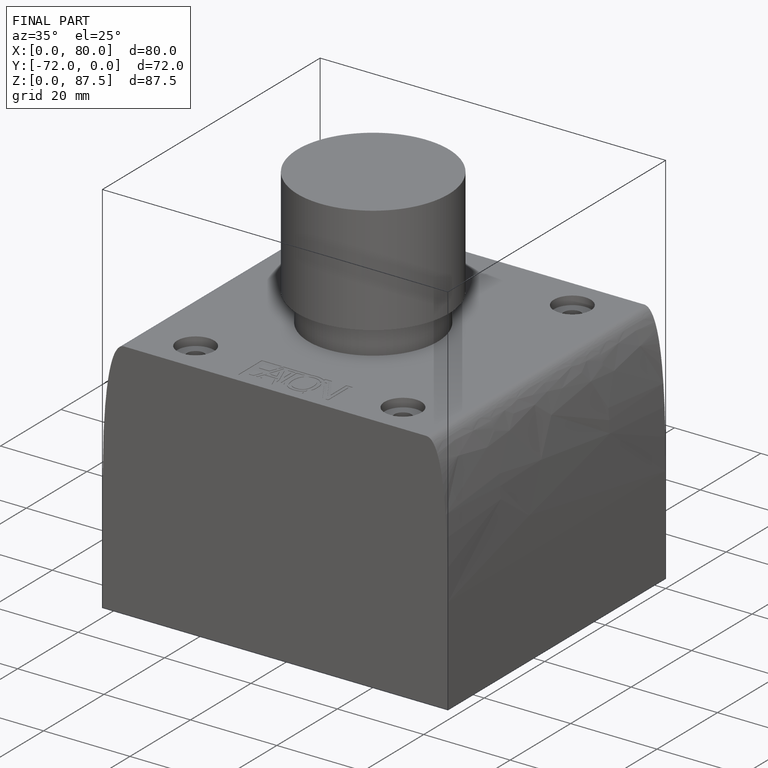
[diagram: finished part — iso view with bounding-box wireframe]
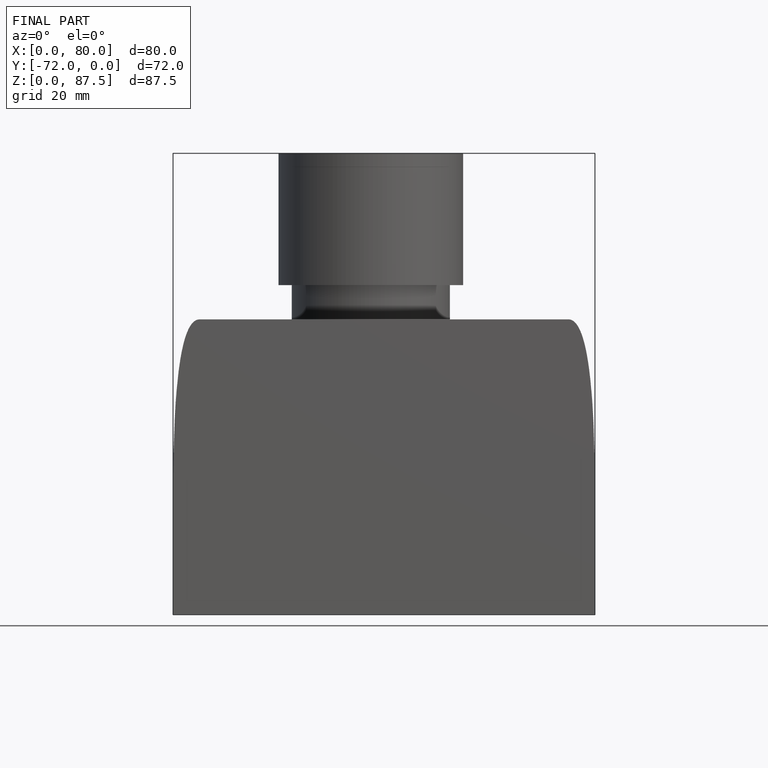
[diagram: finished part — front view with bounding-box wireframe]
